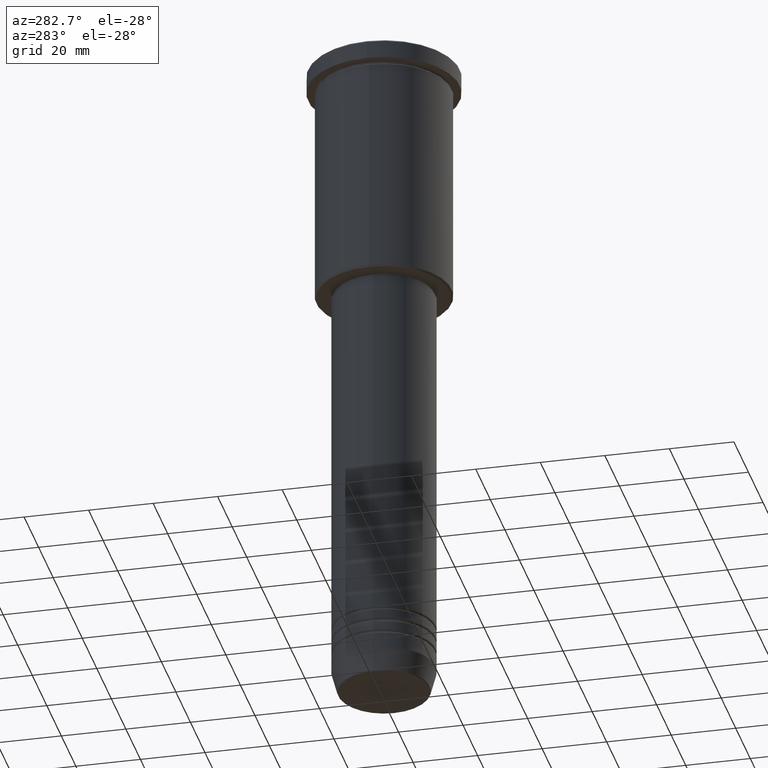
[diagram: clean part render]
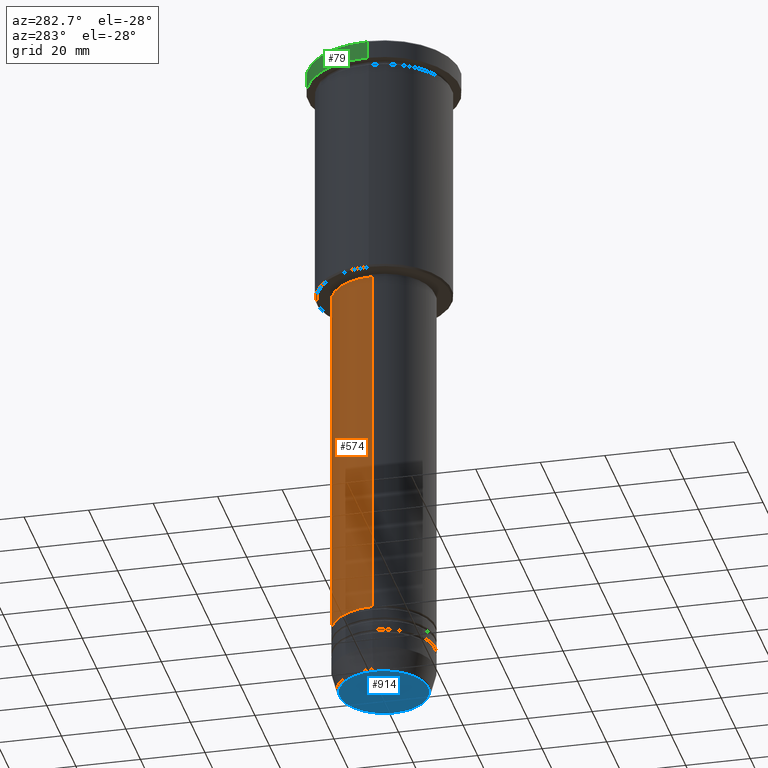
[diagram: same view with three faces highlighted in distinct colors, each labeled with its STEP entity id]
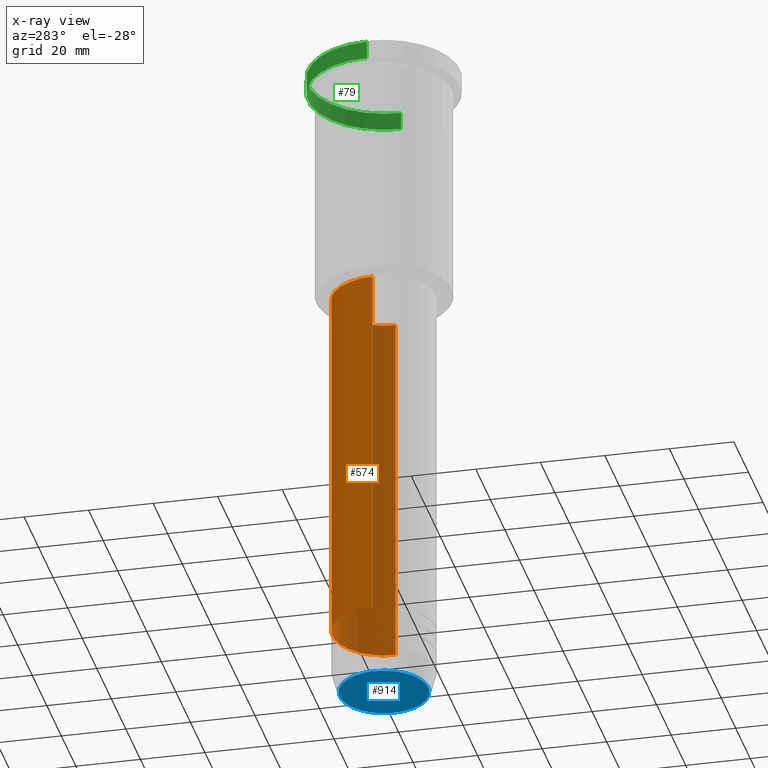
[diagram: x-ray of the same camera — body ghosted, the three highlighted faces saturated]
A machine part, auxiliary view with three faces highlighted in distinct colors.
The next image is the same camera in x-ray (body ghosted, the three faces saturated) — at least one of them is partly hidden behind the body in this view.
Their STEP definitions:

[orange] entity #574 — the highlighted cylindrical surface (partial cylindrical patch) has radius 16 mm, axis along (-0, -0, 1).
#13 = DIRECTION ( 'NONE',  ( -0.000000000000000000, -0.000000000000000000, 1.000000000000000000 ) ) ;
#23 = DIRECTION ( 'NONE',  ( -0.000000000000000000, -0.000000000000000000, 1.000000000000000000 ) ) ;
#52 = AXIS2_PLACEMENT_3D ( 'NONE', #937, #13, #558 ) ;
#56 = CARTESIAN_POINT ( 'NONE',  ( 0.000000000000000000, 0.000000000000000000, 0.000000000000000000 ) ) ;
#90 = CARTESIAN_POINT ( 'NONE',  ( 0.000000000000000000, 0.000000000000000000, -77.00000000000004263 ) ) ;
#98 = EDGE_LOOP ( 'NONE', ( #151, #377, #1052, #776 ) ) ;
#132 = CYLINDRICAL_SURFACE ( 'NONE', #442, 16.00000000000000000 ) ;
#136 = CARTESIAN_POINT ( 'NONE',  ( -16.00000000000000355, 1.959434878635765526E-15, -77.00000000000004263 ) ) ;
#147 = DIRECTION ( 'NONE',  ( -0.000000000000000000, -0.000000000000000000, 1.000000000000000000 ) ) ;
#151 = ORIENTED_EDGE ( 'NONE', *, *, #1034, .T. ) ;
#225 = FACE_OUTER_BOUND ( 'NONE', #98, .T. ) ;
#259 = DIRECTION ( 'NONE',  ( -0.000000000000000000, -0.000000000000000000, 1.000000000000000000 ) ) ;
#300 = DIRECTION ( 'NONE',  ( 1.000000000000000000, 0.000000000000000000, 0.000000000000000000 ) ) ;
#331 = AXIS2_PLACEMENT_3D ( 'NONE', #90, #23, #300 ) ;
#336 = EDGE_CURVE ( 'NONE', #430, #467, #926, .T. ) ;
#344 = CARTESIAN_POINT ( 'NONE',  ( -16.00000000000000000, 1.959434878635765131E-15, 0.000000000000000000 ) ) ;
#362 = DIRECTION ( 'NONE',  ( -0.000000000000000000, -0.000000000000000000, 1.000000000000000000 ) ) ;
#377 = ORIENTED_EDGE ( 'NONE', *, *, #863, .T. ) ;
#430 = VERTEX_POINT ( 'NONE', #924 ) ;
#442 = AXIS2_PLACEMENT_3D ( 'NONE', #56, #147, #869 ) ;
#467 = VERTEX_POINT ( 'NONE', #136 ) ;
#479 = VERTEX_POINT ( 'NONE', #972 ) ;
#506 = CIRCLE ( 'NONE', #52, 16.00000000000000000 ) ;
#558 = DIRECTION ( 'NONE',  ( 1.000000000000000000, 0.000000000000000000, 0.000000000000000000 ) ) ;
#574 = ADVANCED_FACE ( 'NONE', ( #225 ), #132, .T. ) ;
#603 = VECTOR ( 'NONE', #362, 1000.000000000000000 ) ;
#636 = VERTEX_POINT ( 'NONE', #922 ) ;
#720 = CARTESIAN_POINT ( 'NONE',  ( 16.00000000000000000, 0.000000000000000000, 0.000000000000000000 ) ) ;
#776 = ORIENTED_EDGE ( 'NONE', *, *, #923, .F. ) ;
#863 = EDGE_CURVE ( 'NONE', #636, #467, #921, .T. ) ;
#869 = DIRECTION ( 'NONE',  ( 1.000000000000000000, 0.000000000000000000, 0.000000000000000000 ) ) ;
#921 = LINE ( 'NONE', #344, #603 ) ;
#922 = CARTESIAN_POINT ( 'NONE',  ( -16.00000000000000000, 1.959434878635765131E-15, -189.9999999999999147 ) ) ;
#923 = EDGE_CURVE ( 'NONE', #479, #430, #1165, .T. ) ;
#924 = CARTESIAN_POINT ( 'NONE',  ( 16.00000000000000355, 0.000000000000000000, -77.00000000000004263 ) ) ;
#926 = CIRCLE ( 'NONE', #331, 16.00000000000000355 ) ;
#937 = CARTESIAN_POINT ( 'NONE',  ( 0.000000000000000000, 0.000000000000000000, -189.9999999999999147 ) ) ;
#972 = CARTESIAN_POINT ( 'NONE',  ( 16.00000000000000000, 0.000000000000000000, -189.9999999999999147 ) ) ;
#989 = VECTOR ( 'NONE', #259, 1000.000000000000000 ) ;
#1034 = EDGE_CURVE ( 'NONE', #479, #636, #506, .T. ) ;
#1052 = ORIENTED_EDGE ( 'NONE', *, *, #336, .F. ) ;
#1165 = LINE ( 'NONE', #720, #989 ) ;

[blue] entity #914 — the highlighted planar face has unit normal (0, -0, 1).
#78 = CARTESIAN_POINT ( 'NONE',  ( 0.000000000000000000, 0.000000000000000000, -211.0000000000000284 ) ) ;
#150 = EDGE_CURVE ( 'NONE', #567, #438, #787, .T. ) ;
#183 = PLANE ( 'NONE',  #855 ) ;
#249 = DIRECTION ( 'NONE',  ( 1.000000000000000000, 0.000000000000000000, 0.000000000000000000 ) ) ;
#271 = CIRCLE ( 'NONE', #316, 13.74069215899265828 ) ;
#316 = AXIS2_PLACEMENT_3D ( 'NONE', #1112, #850, #735 ) ;
#438 = VERTEX_POINT ( 'NONE', #738 ) ;
#501 = AXIS2_PLACEMENT_3D ( 'NONE', #809, #908, #249 ) ;
#567 = VERTEX_POINT ( 'NONE', #684 ) ;
#612 = ORIENTED_EDGE ( 'NONE', *, *, #1017, .T. ) ;
#629 = EDGE_LOOP ( 'NONE', ( #612, #659 ) ) ;
#659 = ORIENTED_EDGE ( 'NONE', *, *, #150, .T. ) ;
#684 = CARTESIAN_POINT ( 'NONE',  ( -13.74069215899265828, 1.712322416342415986E-15, -211.0000000000000284 ) ) ;
#735 = DIRECTION ( 'NONE',  ( 1.000000000000000000, 0.000000000000000000, 0.000000000000000000 ) ) ;
#738 = CARTESIAN_POINT ( 'NONE',  ( 13.74069215899265828, 0.000000000000000000, -211.0000000000000284 ) ) ;
#787 = CIRCLE ( 'NONE', #501, 13.74069215899265828 ) ;
#807 = DIRECTION ( 'NONE',  ( 1.000000000000000000, 0.000000000000000000, 0.000000000000000000 ) ) ;
#809 = CARTESIAN_POINT ( 'NONE',  ( 0.000000000000000000, 0.000000000000000000, -211.0000000000000284 ) ) ;
#850 = DIRECTION ( 'NONE',  ( 0.000000000000000000, 0.000000000000000000, -1.000000000000000000 ) ) ;
#855 = AXIS2_PLACEMENT_3D ( 'NONE', #78, #1071, #807 ) ;
#908 = DIRECTION ( 'NONE',  ( 0.000000000000000000, 0.000000000000000000, -1.000000000000000000 ) ) ;
#914 = ADVANCED_FACE ( 'NONE', ( #1174 ), #183, .F. ) ;
#1017 = EDGE_CURVE ( 'NONE', #438, #567, #271, .T. ) ;
#1071 = DIRECTION ( 'NONE',  ( 0.000000000000000000, -0.000000000000000000, 1.000000000000000000 ) ) ;
#1112 = CARTESIAN_POINT ( 'NONE',  ( 0.000000000000000000, 0.000000000000000000, -211.0000000000000284 ) ) ;
#1174 = FACE_OUTER_BOUND ( 'NONE', #629, .T. ) ;

[green] entity #79 — the highlighted cylindrical surface (partial cylindrical patch) has radius 23.5 mm, axis along (-0, -0, 1).
#28 = AXIS2_PLACEMENT_3D ( 'NONE', #432, #439, #447 ) ;
#50 = EDGE_LOOP ( 'NONE', ( #55, #697, #997, #593 ) ) ;
#55 = ORIENTED_EDGE ( 'NONE', *, *, #323, .T. ) ;
#79 = ADVANCED_FACE ( 'NONE', ( #1060 ), #148, .T. ) ;
#81 = VERTEX_POINT ( 'NONE', #883 ) ;
#86 = CIRCLE ( 'NONE', #28, 23.50000000000000000 ) ;
#102 = DIRECTION ( 'NONE',  ( -0.000000000000000000, -0.000000000000000000, 1.000000000000000000 ) ) ;
#148 = CYLINDRICAL_SURFACE ( 'NONE', #347, 23.50000000000000000 ) ;
#184 = EDGE_CURVE ( 'NONE', #387, #81, #522, .T. ) ;
#251 = CIRCLE ( 'NONE', #675, 23.50000000000000000 ) ;
#323 = EDGE_CURVE ( 'NONE', #661, #387, #251, .T. ) ;
#330 = CARTESIAN_POINT ( 'NONE',  ( 0.000000000000000000, 0.000000000000000000, 0.000000000000000000 ) ) ;
#340 = CARTESIAN_POINT ( 'NONE',  ( 23.50000000000000000, 0.000000000000000000, -5.999999999999993783 ) ) ;
#347 = AXIS2_PLACEMENT_3D ( 'NONE', #330, #1036, #886 ) ;
#386 = DIRECTION ( 'NONE',  ( 1.000000000000000000, 0.000000000000000000, 0.000000000000000000 ) ) ;
#387 = VERTEX_POINT ( 'NONE', #556 ) ;
#398 = EDGE_CURVE ( 'NONE', #661, #561, #453, .T. ) ;
#432 = CARTESIAN_POINT ( 'NONE',  ( 0.000000000000000000, 0.000000000000000000, -0.5000000000000004441 ) ) ;
#439 = DIRECTION ( 'NONE',  ( 0.000000000000000000, 0.000000000000000000, -1.000000000000000000 ) ) ;
#447 = DIRECTION ( 'NONE',  ( 1.000000000000000000, 0.000000000000000000, 0.000000000000000000 ) ) ;
#453 = LINE ( 'NONE', #644, #826 ) ;
#458 = VECTOR ( 'NONE', #996, 1000.000000000000000 ) ;
#496 = CARTESIAN_POINT ( 'NONE',  ( 23.50000000000000000, 0.000000000000000000, -0.5000000000000004441 ) ) ;
#522 = LINE ( 'NONE', #1172, #458 ) ;
#556 = CARTESIAN_POINT ( 'NONE',  ( -23.50000000000000000, 2.877919977996280320E-15, -5.999999999999993783 ) ) ;
#561 = VERTEX_POINT ( 'NONE', #496 ) ;
#593 = ORIENTED_EDGE ( 'NONE', *, *, #398, .F. ) ;
#644 = CARTESIAN_POINT ( 'NONE',  ( 23.50000000000000000, 0.000000000000000000, 0.000000000000000000 ) ) ;
#661 = VERTEX_POINT ( 'NONE', #340 ) ;
#675 = AXIS2_PLACEMENT_3D ( 'NONE', #819, #102, #386 ) ;
#697 = ORIENTED_EDGE ( 'NONE', *, *, #184, .T. ) ;
#819 = CARTESIAN_POINT ( 'NONE',  ( 0.000000000000000000, 0.000000000000000000, -5.999999999999993783 ) ) ;
#826 = VECTOR ( 'NONE', #1030, 1000.000000000000000 ) ;
#883 = CARTESIAN_POINT ( 'NONE',  ( -23.50000000000000000, 2.877919977996280320E-15, -0.5000000000000004441 ) ) ;
#886 = DIRECTION ( 'NONE',  ( 1.000000000000000000, 0.000000000000000000, 0.000000000000000000 ) ) ;
#890 = EDGE_CURVE ( 'NONE', #81, #561, #86, .T. ) ;
#996 = DIRECTION ( 'NONE',  ( -0.000000000000000000, -0.000000000000000000, 1.000000000000000000 ) ) ;
#997 = ORIENTED_EDGE ( 'NONE', *, *, #890, .T. ) ;
#1030 = DIRECTION ( 'NONE',  ( -0.000000000000000000, -0.000000000000000000, 1.000000000000000000 ) ) ;
#1036 = DIRECTION ( 'NONE',  ( -0.000000000000000000, -0.000000000000000000, 1.000000000000000000 ) ) ;
#1060 = FACE_OUTER_BOUND ( 'NONE', #50, .T. ) ;
#1172 = CARTESIAN_POINT ( 'NONE',  ( -23.50000000000000000, 2.877919977996280320E-15, 0.000000000000000000 ) ) ;